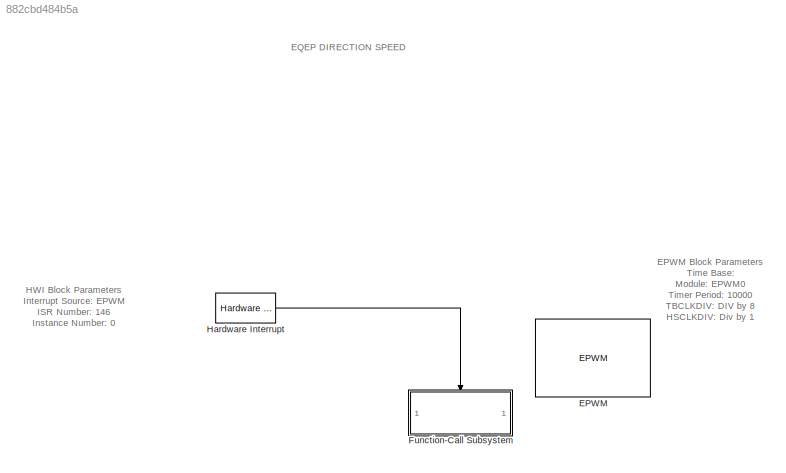
MODEL slx_882cbd484b5a
KIND model
CONFIG AbsTol = auto
CONFIG EnableMultiTasking = off
CONFIG FixedStep = auto
CONFIG MaxStep = auto
CONFIG MinStep = auto
CONFIG RelTol = 1e-3
CONFIG SampleTimeConstraint = Unconstrained
CONFIG SolverName = FixedStepAuto
CONFIG StartTime = 0.0
CONFIG StopTime = 10.0
BLOCK [Reference] EPWM  REF=peripheral_library_blocks_am261x/EPWM
  SourceBlock = peripheral_library_blocks_am261x/EPWM
  SourceType = EPWM_AM261X
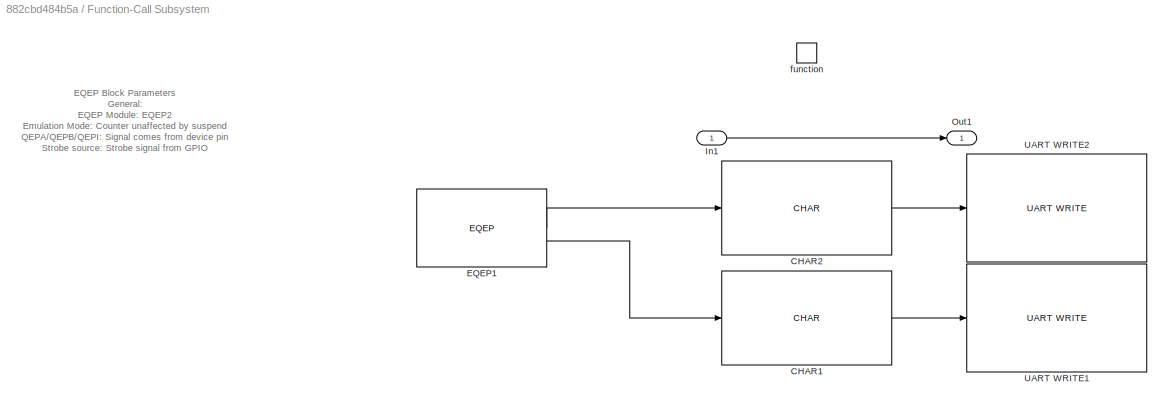
BLOCK [SubSystem] Function-Call Subsystem
  TreatAsAtomicUnit = on
BLOCK [Reference] Function-Call Subsystem/CHAR1  REF=peripheral_library_blocks_am261x/CHAR
  SourceBlock = peripheral_library_blocks_am261x/CHAR
  SourceType = CHAR
BLOCK [Reference] Function-Call Subsystem/CHAR2  REF=peripheral_library_blocks_am261x/CHAR
  SourceBlock = peripheral_library_blocks_am261x/CHAR
  SourceType = CHAR
BLOCK [Reference] Function-Call Subsystem/EQEP1  REF=peripheral_library_blocks_am261x/EQEP
  SourceBlock = peripheral_library_blocks_am261x/EQEP
  SourceType = EQEP_AM261X
BLOCK [Inport] Function-Call Subsystem/In1
BLOCK [Outport] Function-Call Subsystem/Out1
BLOCK [Reference] Function-Call Subsystem/UART WRITE1  REF=peripheral_library_blocks_am261x/UART WRITE
  SourceBlock = peripheral_library_blocks_am261x/UART WRITE
  SourceType = UART_WRITE_AM261X
BLOCK [Reference] Function-Call Subsystem/UART WRITE2  REF=peripheral_library_blocks_am261x/UART WRITE
  SourceBlock = peripheral_library_blocks_am261x/UART WRITE
  SourceType = UART_WRITE_AM261X
BLOCK [TriggerPort] Function-Call Subsystem/function
  StatesWhenEnabling = held
  TriggerType = function-call
  VariantControl = (inherit)
BLOCK [Reference] Hardware Interrupt  REF=HWI_lib/Hardware Interrupt
  SourceBlock = HWI_lib/Hardware Interrupt
  SourceProductName = Embedded Coder Support Package for AM263x - HWI Block
ANNOTATION (root): EPWM Block Parameters Time Base: Module: EPWM0 Timer Period: 10000 TBCLKDIV: DIV by 8 HSCLKDIV: Div by 1 Counter Mode: Up Count Mode Counter Compare: CMPA Value: 5000 CMPB Value: 0 Action Qualifier: EPWMXA CMPAU: Output pins high EPWMXA CMPAD: Output pins low EPWMXB CNTR Zero: Output pins low EPWMXB CNTR Prd: Output pins high Event Trigger Enable EPWM Interrupt: True Event for interrupt generation...<+84ch>
ANNOTATION (root): HWI Block Parameters Interrupt Source: EPWM ISR Number: 146 Instance Number: 0
ANNOTATION (root): EQEP DIRECTION SPEED
ANNOTATION Function-Call Subsystem: EQEP Block Parameters General: EQEP Module: EQEP2 Emulation Mode: Counter unaffected by suspend QEPA/QEPB/QEPI: Signal comes from device pin Strobe source: Strobe signal from GPIO Quadrature Decoder Unit: Position Counter Source: Quadrature clock mode Resolution: 1x resolution, count rising edge only Position Counter Unit: Position Counter Mode: Reset on index pulse Max Position: 4294967285 Strobe...<+313ch>
LINE Function-Call Subsystem/CHAR1:1 -> Function-Call Subsystem/UART WRITE1:1
LINE Function-Call Subsystem/CHAR2:1 -> Function-Call Subsystem/UART WRITE2:1
LINE Function-Call Subsystem/EQEP1:1 -> Function-Call Subsystem/CHAR2:1
LINE Function-Call Subsystem/EQEP1:2 -> Function-Call Subsystem/CHAR1:1
LINE Function-Call Subsystem/In1:1 -> Function-Call Subsystem/Out1:1
LINE Hardware Interrupt:1 -> Function-Call Subsystem:trigger
